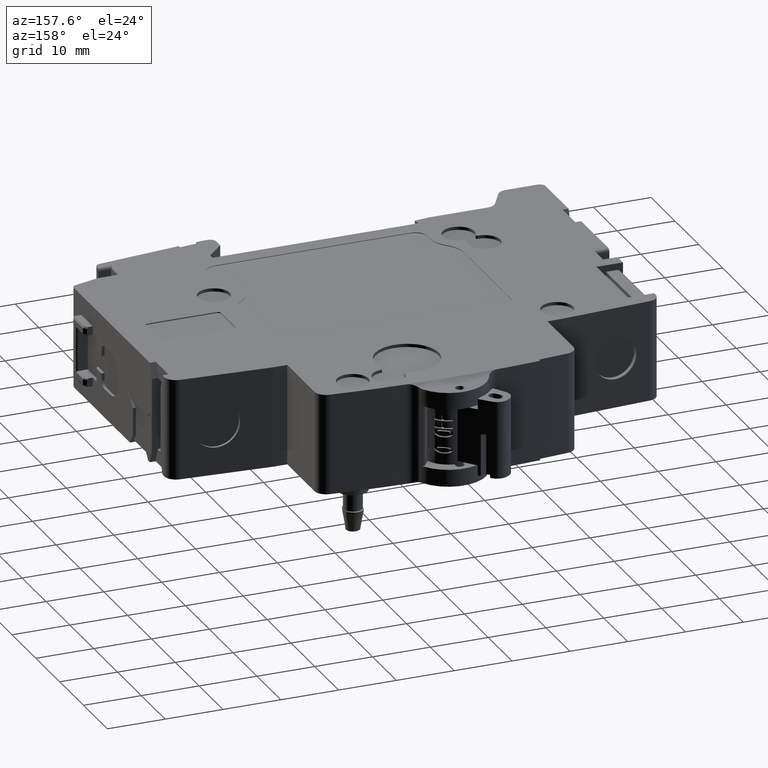
[diagram: clean part render]
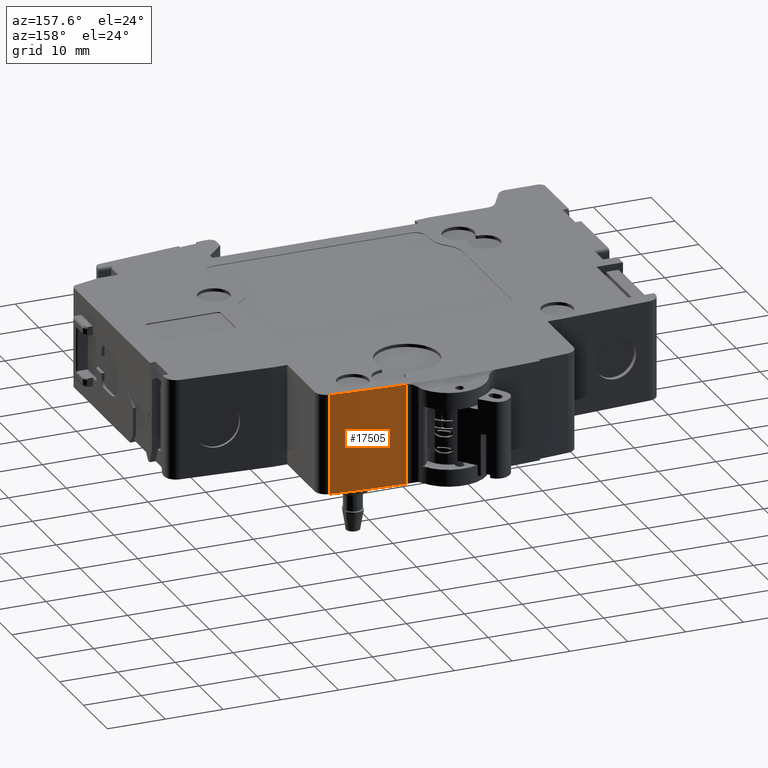
[diagram: same view with one face highlighted and labeled with its STEP entity id]
A machine part, auxiliary view. The second image highlights one B-rep face of the part: STEP entity #17505.
In plain terms, the highlighted cylindrical surface (partial cylindrical patch) has radius 200 mm, axis along (0, 0, -1).
Its self-contained STEP definition (entity closure, byte-faithful):
#2940=DIRECTION('',(-4.092685526695E-9,1.701382330177E-10,1.E0));
#2941=VECTOR('',#2940,1.739999999861E1);
#2942=CARTESIAN_POINT('',(7.735144592936E0,6.035036286692E1,-8.699999998714E0));
#2943=LINE('',#2942,#2941);
#2982=CARTESIAN_POINT('',(0.E0,-1.395E2,8.7E0));
#2983=DIRECTION('',(0.E0,0.E0,-1.E0));
#2984=DIRECTION('',(3.867572261636E-2,9.992518143492E-1,0.E0));
#2985=AXIS2_PLACEMENT_3D('',#2982,#2983,#2984);
#2987=CARTESIAN_POINT('',(0.E0,-1.395E2,-8.7E0));
#2988=DIRECTION('',(0.E0,0.E0,-1.E0));
#2989=DIRECTION('',(3.867572311783E-2,9.992518143298E-1,0.E0));
#2990=AXIS2_PLACEMENT_3D('',#2987,#2988,#2989);
#3001=DIRECTION('',(0.E0,0.E0,-1.E0));
#3002=VECTOR('',#3001,1.74E1);
#3003=CARTESIAN_POINT('',(2.070707070707E1,5.942515482646E1,8.7E0));
#3004=LINE('',#3003,#3002);
#11740=CARTESIAN_POINT('',(2.070707070707E1,5.942515482646E1,-8.7E0));
#11742=VERTEX_POINT('',#11740);
#12068=CARTESIAN_POINT('',(7.735144623565E0,6.035036286595E1,-8.7E0));
#12069=VERTEX_POINT('',#12068);
#13311=CARTESIAN_POINT('',(2.070707070707E1,5.942515482646E1,8.7E0));
#13313=VERTEX_POINT('',#13311);
#13337=CARTESIAN_POINT('',(7.735144523271E0,6.035036286983E1,8.7E0));
#13338=VERTEX_POINT('',#13337);
#17493=CARTESIAN_POINT('',(0.E0,-1.395E2,0.E0));
#17494=DIRECTION('',(0.E0,0.E0,-1.E0));
#17495=DIRECTION('',(-1.E0,0.E0,0.E0));
#17496=AXIS2_PLACEMENT_3D('',#17493,#17494,#17495);
#17497=CYLINDRICAL_SURFACE('',#17496,2.E2);
#17499=ORIENTED_EDGE('',*,*,#17498,.F.);
#17500=ORIENTED_EDGE('',*,*,#15822,.F.);
#17501=ORIENTED_EDGE('',*,*,#17483,.F.);
#17502=ORIENTED_EDGE('',*,*,#14835,.T.);
#17503=EDGE_LOOP('',(#17499,#17500,#17501,#17502));
#17504=FACE_OUTER_BOUND('',#17503,.F.);
#2986=CIRCLE('',#2985,2.E2);
#2991=CIRCLE('',#2990,2.E2);
#14835=EDGE_CURVE('',#12069,#11742,#2991,.T.);
#15822=EDGE_CURVE('',#13338,#13313,#2986,.T.);
#17483=EDGE_CURVE('',#12069,#13338,#2943,.T.);
#17498=EDGE_CURVE('',#13313,#11742,#3004,.T.);
#17505=ADVANCED_FACE('',(#17504),#17497,.T.);